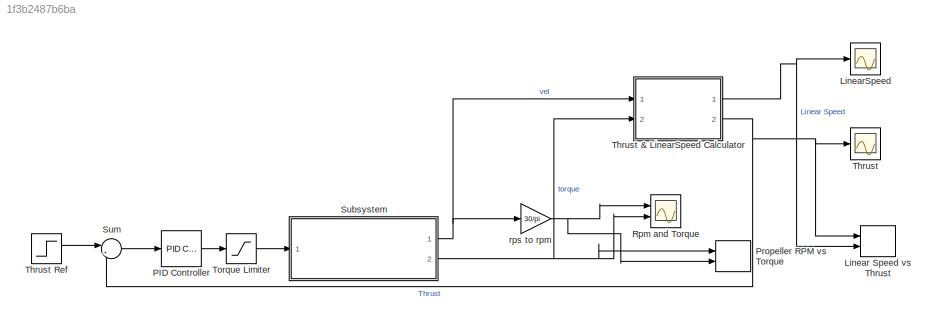
MODEL slx_1f3b2487b6ba
KIND model
CONFIG AbsTol = auto
CONFIG EnableMultiTasking = off
CONFIG FixedStep = auto
CONFIG MaxStep = auto
CONFIG MinStep = auto
CONFIG RelTol = 1e-3
CONFIG SampleTimeConstraint = Unconstrained
CONFIG SolverName = VariableStepAuto
CONFIG StartTime = 0.0
CONFIG StopTime = 10.0
BLOCK [Record] Linear Speed vs Thrust
  CompatibilityTag = XY
  FileSettingsInternal = {"entries":[{"content":{"excelSettings":{"content":{},"type":"Streamout.ExcelSettings"}},"type":"Streamout.FileSettingStorage","uuid":"3fc35d0f-0d30-4e88-8444-666a3de2e4c7"}],"packageUris":["http://schema.mathworks.com/mf0/streamout_blocks/R2020a"],"version":"1.0"}
  Layout = [1 1]
  Ports = [2]
  SignalsInternal = {"entries":[{"content":{"signals":[{"content":{"blockPath":["Propeller_Control_Multibody_Actuation/Linear Speed vs Thrust"],"channel":[],"dimensions":[1],"domain":"Propeller_Control_Multibody_Actuation/Linear Speed vs Thrust","lineColor":"#a2142f","plots":[1],"port":1,"sid":[""],"signalID":500,"signalName":"Thrust"},"type":"RecordBlkView.Signal","uuid":"f2091cc1-d94e-4adc-8aeb-c0435d24fdf8"},{"con...<+537ch>
  VisualizationBindings = {"xyplotplugin":{"info":[{"series":[{"bindingParametersList":[{"parameter":"X-Axis","signalID":500,"signalName":"Thrust"},{"parameter":"Y-Axis","signalID":504,"signalName":"Linear Speed"}],"seriesID":39559}],"subplotID":1}]}}
BLOCK [Scope] LinearSpeed
  Floating = off
  NumInputPorts = 1
  Ports = [1]
  ScopeSpecificationString = Simulink.scopes.TimeScopeBlockCfg('CurrentConfiguration', extmgr.ConfigurationSet(extmgr.Configuration('Core','General UI',true),extmgr.Configuration('Core','Source UI',true),extmgr.Configuration('Sources','WiredSimulink',true,'DataLoggingVariableName','ScopeData2'),extmgr.Configuration('Visuals','Time Domain',true,'SerializedDisplays',{struct('MinYLimReal','-0.00044','MaxYLimReal','0.00394','YLab...<+1404ch>
BLOCK [Reference] PID Controller  REF=slpidlib/PID Controller
  Ports = [1, 1]
  SourceBlock = slpidlib/PID Controller
  SourceProductBaseCode = SL
  SourceType = PID 1dof
BLOCK [Record] Propeller RPM vs Torque
  CompatibilityTag = XY
  FileSettingsInternal = {"entries":[{"content":{"excelSettings":{"content":{},"type":"Streamout.ExcelSettings"}},"type":"Streamout.FileSettingStorage","uuid":"18f84966-27c3-4ce7-b6ac-2c7e612d2599"}],"packageUris":["http://schema.mathworks.com/mf0/streamout_blocks/R2020a"],"version":"1.0"}
  Layout = [1 1]
  Ports = [2]
  SignalsInternal = {"entries":[{"content":{"signals":[{"content":{"blockPath":["Propeller_Control_Multibody_Actuation/Propeller RPM vs Torque"],"channel":[],"dimensions":[1],"domain":"Propeller_Control_Multibody_Actuation/Propeller RPM vs Torque","lineColor":"#a2142f","plots":[1],"port":1,"sid":[""],"signalID":508,"signalName":"torque"},"type":"RecordBlkView.Signal","uuid":"7dc712b6-35f7-43a9-968d-4d078c9a7c02"},{"c...<+539ch>
  VisualizationBindings = {"xyplotplugin":{"info":[{"series":[{"bindingParametersList":[{"parameter":"X-Axis","signalID":508,"signalName":"torque"},{"parameter":"Y-Axis","signalID":512,"signalName":"rps to rpm"}],"seriesID":37015}],"subplotID":1}]}}
BLOCK [Scope] Rpm and Torque
  Floating = off
  NumInputPorts = 2
  Ports = [2]
  ScopeSpecificationString = Simulink.scopes.TimeScopeBlockCfg('CurrentConfiguration', extmgr.ConfigurationSet(extmgr.Configuration('Core','General UI',true),extmgr.Configuration('Core','Source UI',true),extmgr.Configuration('Sources','WiredSimulink',true),extmgr.Configuration('Visuals','Time Domain',true,'SerializedDisplays',{struct('MinYLimReal','-6.88913','MaxYLimReal','62.00215','YLabelReal','','MinYLimMag','0.00000','Max...<+1374ch>
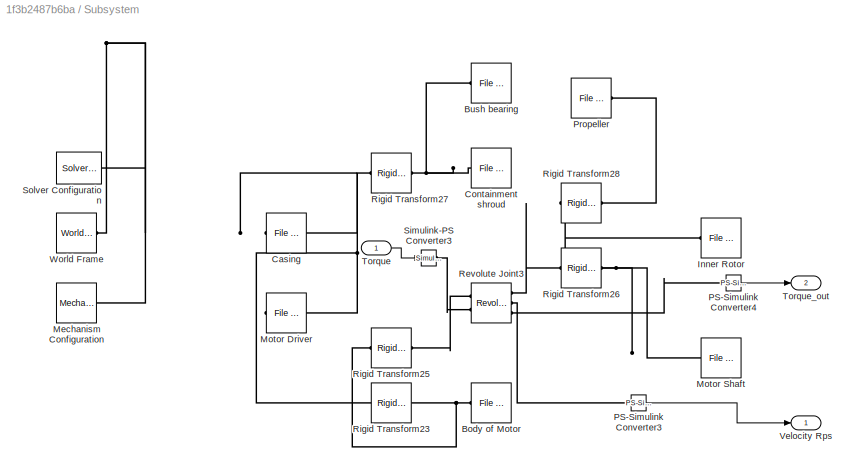
BLOCK [SubSystem] Subsystem
  Ports = [1, 2]
  RequestExecContextInheritance = off
BLOCK [Reference] Subsystem/Body of Motor  REF=sm_lib/Body Elements/File Solid
  Ports = [0, 0, 0, 0, 0, 0, 1]
  SourceBlock = sm_lib/Body Elements/File Solid
  SourceProductBaseCode = MS
  SourceType = File Solid
BLOCK [Reference] Subsystem/Bush bearing  REF=sm_lib/Body Elements/File Solid
  Ports = [0, 0, 0, 0, 0, 0, 1]
  SourceBlock = sm_lib/Body Elements/File Solid
  SourceProductBaseCode = MS
  SourceType = File Solid
BLOCK [Reference] Subsystem/Casing  REF=sm_lib/Body Elements/File Solid
  Ports = [0, 0, 0, 0, 0, 0, 1]
  SourceBlock = sm_lib/Body Elements/File Solid
  SourceProductBaseCode = MS
  SourceType = File Solid
BLOCK [Reference] Subsystem/Containment shroud  REF=sm_lib/Body Elements/File Solid
  Ports = [0, 0, 0, 0, 0, 0, 1]
  SourceBlock = sm_lib/Body Elements/File Solid
  SourceProductBaseCode = MS
  SourceType = File Solid
BLOCK [Reference] Subsystem/Inner Rotor  REF=sm_lib/Body Elements/File Solid
  NameLocation = top
  Ports = [0, 0, 0, 0, 0, 0, 1]
  SourceBlock = sm_lib/Body Elements/File Solid
  SourceProductBaseCode = MS
  SourceType = File Solid
BLOCK [Reference] Subsystem/Mechanism Configuration  REF=sm_lib/Utilities/Mechanism
Configuration
  Ports = [0, 0, 0, 0, 0, 0, 1]
  SourceBlock = sm_lib/Utilities/Mechanism\nConfiguration
  SourceProductBaseCode = MS
  SourceType = Mechanism\nConfiguration
BLOCK [Reference] Subsystem/Motor Driver  REF=sm_lib/Body Elements/File Solid
  Ports = [0, 0, 0, 0, 0, 0, 1]
  SourceBlock = sm_lib/Body Elements/File Solid
  SourceProductBaseCode = MS
  SourceType = File Solid
BLOCK [Reference] Subsystem/Motor Shaft  REF=sm_lib/Body Elements/File Solid
  Ports = [0, 0, 0, 0, 0, 0, 1]
  SourceBlock = sm_lib/Body Elements/File Solid
  SourceProductBaseCode = MS
  SourceType = File Solid
BLOCK [Reference] Subsystem/PS-Simulink Converter3  REF=nesl_utility/PS-Simulink
Converter
  Ports = [0, 1, 0, 0, 0, 1]
  SourceBlock = nesl_utility/PS-Simulink\nConverter
  SourceProductBaseCode = PW,SS
  SourceType = PS-Simulink\nConverter
BLOCK [Reference] Subsystem/PS-Simulink Converter4  REF=nesl_utility/PS-Simulink
Converter
  Ports = [0, 1, 0, 0, 0, 1]
  SourceBlock = nesl_utility/PS-Simulink\nConverter
  SourceProductBaseCode = PW,SS
  SourceType = PS-Simulink\nConverter
BLOCK [Reference] Subsystem/Propeller  REF=sm_lib/Body Elements/File Solid
  Ports = [0, 0, 0, 0, 0, 0, 1]
  SourceBlock = sm_lib/Body Elements/File Solid
  SourceProductBaseCode = MS
  SourceType = File Solid
BLOCK [Reference] Subsystem/Revolute Joint3  REF=sm_lib/Joints/Revolute Joint
  Ports = [0, 0, 0, 0, 0, 2, 3]
  SourceBlock = sm_lib/Joints/Revolute Joint
  SourceProductBaseCode = MS
  SourceType = Revolute Joint
BLOCK [Reference] Subsystem/Rigid Transform23  REF=sm_lib/Frames and
Transforms/Rigid
Transform
  Ports = [0, 0, 0, 0, 0, 1, 1]
  SourceBlock = sm_lib/Frames and\nTransforms/Rigid\nTransform
  SourceProductBaseCode = MS
  SourceType = Rigid\nTransform
BLOCK [Reference] Subsystem/Rigid Transform25  REF=sm_lib/Frames and
Transforms/Rigid
Transform
  Ports = [0, 0, 0, 0, 0, 1, 1]
  SourceBlock = sm_lib/Frames and\nTransforms/Rigid\nTransform
  SourceProductBaseCode = MS
  SourceType = Rigid\nTransform
BLOCK [Reference] Subsystem/Rigid Transform26  REF=sm_lib/Frames and
Transforms/Rigid
Transform
  Ports = [0, 0, 0, 0, 0, 1, 1]
  SourceBlock = sm_lib/Frames and\nTransforms/Rigid\nTransform
  SourceProductBaseCode = MS
  SourceType = Rigid\nTransform
BLOCK [Reference] Subsystem/Rigid Transform27  REF=sm_lib/Frames and
Transforms/Rigid
Transform
  Ports = [0, 0, 0, 0, 0, 1, 1]
  SourceBlock = sm_lib/Frames and\nTransforms/Rigid\nTransform
  SourceProductBaseCode = MS
  SourceType = Rigid\nTransform
BLOCK [Reference] Subsystem/Rigid Transform28  REF=sm_lib/Frames and
Transforms/Rigid
Transform
  Ports = [0, 0, 0, 0, 0, 1, 1]
  SourceBlock = sm_lib/Frames and\nTransforms/Rigid\nTransform
  SourceProductBaseCode = MS
  SourceType = Rigid\nTransform
BLOCK [Reference] Subsystem/Simulink-PS Converter3  REF=nesl_utility/Simulink-PS
Converter
  Ports = [1, 0, 0, 0, 0, 0, 1]
  SourceBlock = nesl_utility/Simulink-PS\nConverter
  SourceProductBaseCode = PW,SS
  SourceType = Simulink-PS\nConverter
BLOCK [Reference] Subsystem/Solver Configuration  REF=nesl_utility/Solver
Configuration
  Ports = [0, 0, 0, 0, 0, 0, 1]
  SourceBlock = nesl_utility/Solver\nConfiguration
  SourceProductBaseCode = PW,SS
  SourceType = Solver\nConfiguration
BLOCK [Inport] Subsystem/Torque
BLOCK [Outport] Subsystem/Torque_out
  Port = 2
BLOCK [Outport] Subsystem/Velocity Rps
BLOCK [Reference] Subsystem/World Frame  REF=sm_lib/Frames and
Transforms/World Frame
  Ports = [0, 0, 0, 0, 0, 0, 1]
  SourceBlock = sm_lib/Frames and\nTransforms/World Frame
  SourceProductBaseCode = MS
  SourceType = World Frame
BLOCK [Sum] Sum
  Inputs = |+-
  Ports = [2, 1]
BLOCK [Scope] Thrust
  Floating = off
  NumInputPorts = 1
  Ports = [1]
  ScopeSpecificationString = Simulink.scopes.TimeScopeBlockCfg('CurrentConfiguration', extmgr.ConfigurationSet(extmgr.Configuration('Core','General UI',true),extmgr.Configuration('Core','Source UI',true),extmgr.Configuration('Sources','WiredSimulink',true,'DataLoggingVariableName','ScopeData1'),extmgr.Configuration('Visuals','Time Domain',true,'SerializedDisplays',{struct('MinYLimReal','-1.22765','MaxYLimReal','11.04884','YLa...<+1400ch>
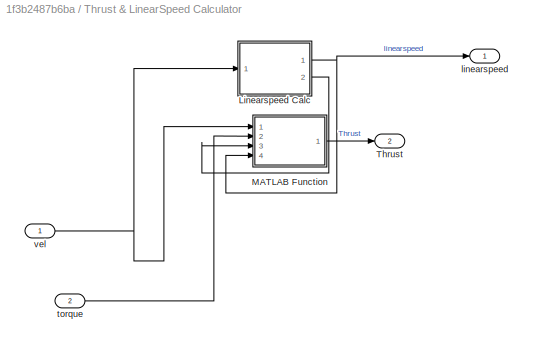
BLOCK [SubSystem] Thrust & LinearSpeed Calculator
  Ports = [2, 2]
  RequestExecContextInheritance = off
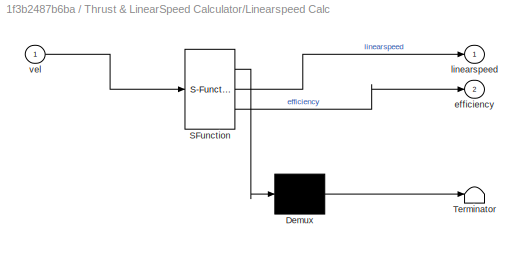
BLOCK [SubSystem] Thrust & LinearSpeed Calculator/Linearspeed Calc
  ErrorFcn = Stateflow.Translate.translate
  PermitHierarchicalResolution = ExplicitOnly
  Ports = [1, 2]
  RequestExecContextInheritance = off
  SFBlockType = MATLAB Function
  TreatAsAtomicUnit = on
BLOCK [Demux] Thrust & LinearSpeed Calculator/Linearspeed Calc/ Demux 
  Outputs = 1
  Ports = [1, 1]
BLOCK [S-Function] Thrust & LinearSpeed Calculator/Linearspeed Calc/ SFunction 
  EnableBusSupport = on
  FunctionName = sf_sfun
  PortCounts = [1 3]
  Ports = [1, 3]
  SFcnIsStateOwnerBlock = off
  SFunctionDeploymentMode = off
  Tag = Stateflow S-Function 1
BLOCK [Terminator] Thrust & LinearSpeed Calculator/Linearspeed Calc/ Terminator 
BLOCK [Outport] Thrust & LinearSpeed Calculator/Linearspeed Calc/efficiency
  Port = 2
BLOCK [Outport] Thrust & LinearSpeed Calculator/Linearspeed Calc/linearspeed
BLOCK [Inport] Thrust & LinearSpeed Calculator/Linearspeed Calc/vel
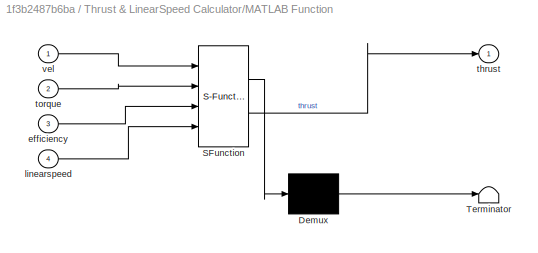
BLOCK [SubSystem] Thrust & LinearSpeed Calculator/MATLAB Function
  ErrorFcn = Stateflow.Translate.translate
  PermitHierarchicalResolution = ExplicitOnly
  Ports = [4, 1]
  RequestExecContextInheritance = off
  SFBlockType = MATLAB Function
  TreatAsAtomicUnit = on
BLOCK [Demux] Thrust & LinearSpeed Calculator/MATLAB Function/ Demux 
  Outputs = 1
  Ports = [1, 1]
BLOCK [S-Function] Thrust & LinearSpeed Calculator/MATLAB Function/ SFunction 
  EnableBusSupport = on
  FunctionName = sf_sfun
  PortCounts = [4 2]
  Ports = [4, 2]
  SFcnIsStateOwnerBlock = off
  SFunctionDeploymentMode = off
  Tag = Stateflow S-Function 2
BLOCK [Terminator] Thrust & LinearSpeed Calculator/MATLAB Function/ Terminator 
BLOCK [Inport] Thrust & LinearSpeed Calculator/MATLAB Function/efficiency
  Port = 3
BLOCK [Inport] Thrust & LinearSpeed Calculator/MATLAB Function/linearspeed
  Port = 4
BLOCK [Outport] Thrust & LinearSpeed Calculator/MATLAB Function/thrust
BLOCK [Inport] Thrust & LinearSpeed Calculator/MATLAB Function/torque
  Port = 2
BLOCK [Inport] Thrust & LinearSpeed Calculator/MATLAB Function/vel
BLOCK [Outport] Thrust & LinearSpeed Calculator/Thrust
  Port = 2
BLOCK [Outport] Thrust & LinearSpeed Calculator/linearspeed
BLOCK [Inport] Thrust & LinearSpeed Calculator/torque
  Port = 2
BLOCK [Inport] Thrust & LinearSpeed Calculator/vel
BLOCK [Step] Thrust Ref
  After = 98
  SampleTime = 0
BLOCK [Saturate] Torque Limiter
  LowerLimit = 0
  UpperLimit = 25
BLOCK [Gain] rps to rpm
  Gain = 30/pi
LINE PID Controller:1 -> Torque Limiter:1
LINE Subsystem/PS-Simulink Converter3:1 -> Subsystem/Velocity Rps:1
LINE Subsystem/PS-Simulink Converter4:1 -> Subsystem/Torque_out:1
LINE Subsystem/Torque:1 -> Subsystem/Simulink-PS Converter3:1
NET Subsystem:1 -> Thrust & LinearSpeed Calculator:1, rps to rpm:1
NET Subsystem:2 -> Propeller RPM vs Torque:1, Rpm and Torque:2, Thrust & LinearSpeed Calculator:2
LINE Sum:1 -> PID Controller:1
NET Thrust & LinearSpeed Calculator/Linearspeed Calc:1 -> Thrust & LinearSpeed Calculator/MATLAB Function:4, Thrust & LinearSpeed Calculator/linearspeed:1
LINE Thrust & LinearSpeed Calculator/Linearspeed Calc:2 -> Thrust & LinearSpeed Calculator/MATLAB Function:3
LINE Thrust & LinearSpeed Calculator/MATLAB Function:1 -> Thrust & LinearSpeed Calculator/Thrust:1
LINE Thrust & LinearSpeed Calculator/torque:1 -> Thrust & LinearSpeed Calculator/MATLAB Function:2
NET Thrust & LinearSpeed Calculator/vel:1 -> Thrust & LinearSpeed Calculator/Linearspeed Calc:1, Thrust & LinearSpeed Calculator/MATLAB Function:1
NET Thrust & LinearSpeed Calculator:1 -> Linear Speed vs Thrust:2, LinearSpeed:1
NET Thrust & LinearSpeed Calculator:2 -> Linear Speed vs Thrust:1, Sum:2, Thrust:1
LINE Thrust Ref:1 -> Sum:1
LINE Torque Limiter:1 -> Subsystem:1
NET rps to rpm:1 -> Propeller RPM vs Torque:2, Rpm and Torque:1
PNET net1: Subsystem/Body of Motor:RConn1 -- Subsystem/Rigid Transform23:RConn1 -- Subsystem/Rigid Transform25:LConn1
PNET net2: Subsystem/Bush bearing:RConn1 -- Subsystem/Containment shroud:RConn1 -- Subsystem/Rigid Transform27:RConn1
PNET net3: Subsystem/Casing:RConn1 -- Subsystem/Mechanism Configuration:RConn1 -- Subsystem/Motor Driver:RConn1 -- Subsystem/Rigid Transform23:LConn1 -- Subsystem/Rigid Transform27:LConn1 -- Subsystem/Solver Configuration:RConn1 -- Subsystem/World Frame:RConn1
PNET net4: Subsystem/Inner Rotor:RConn1 -- Subsystem/Rigid Transform26:RConn1 -- Subsystem/Rigid Transform28:LConn1
PNET net5: Subsystem/Motor Shaft:RConn1 -- Subsystem/Revolute Joint3:RConn1 -- Subsystem/Rigid Transform26:LConn1
PLINE Subsystem/PS-Simulink Converter3:LConn1 -- Subsystem/Revolute Joint3:RConn2
PLINE Subsystem/PS-Simulink Converter4:LConn1 -- Subsystem/Revolute Joint3:RConn3
PLINE Subsystem/Propeller:RConn1 -- Subsystem/Rigid Transform28:RConn1
PLINE Subsystem/Revolute Joint3:LConn1 -- Subsystem/Rigid Transform25:RConn1
PLINE Subsystem/Revolute Joint3:LConn2 -- Subsystem/Simulink-PS Converter3:RConn1
note: NET lines group one-source signal fan-out (src -> all destinations, sorted); 1:1 wires keep LINE; PNET lines group multi-terminal physical nets as a canonical sorted terminal list (undirected conserving connections); 2-terminal nets keep the pairwise PLINE form
CHART Thrust & LinearSpeed Calculator/Linearspeed Calc states=1 transitions=1
  STATE_LABEL 'eML_blk_kernel()'
  STATE_LABEL 'SCRIPT:\nfunction [linearspeed,efficiency] = fcn(vel)\npitch_angle= 27;\nprop_d=0.35;\npitch= tand(pitch_angle)*prop_d*pi;\nrpm=vel*30/pi;\nif(rpm<10)\n    efficiency=0.1;\nelseif(rpm<20)\n    efficiency=0.2;\nelseif(rpm<30)\n    efficiency=0.3; \nelseif(rpm<40)\n    efficiency=0.4;\nelseif(rpm<50)\n    efficiency=0.5;\nelseif(rpm<100)\n    efficiency=0.6;\nelse\n    efficiency=0.7;\nend\nlinearspeed=pitch*efficiency*...<+14ch>'
CHART Thrust & LinearSpeed Calculator/MATLAB Function states=1 transitions=1
  STATE_LABEL 'eML_blk_kernel()'
  STATE_LABEL 'SCRIPT:\nfunction thrust = fcn(vel, torque,efficiency,linearspeed)\nthrust=vel*torque*efficiency/0.1+linearspeed;\nend\n\n\n'
CHART  states=0 transitions=0
CHART  states=0 transitions=0
